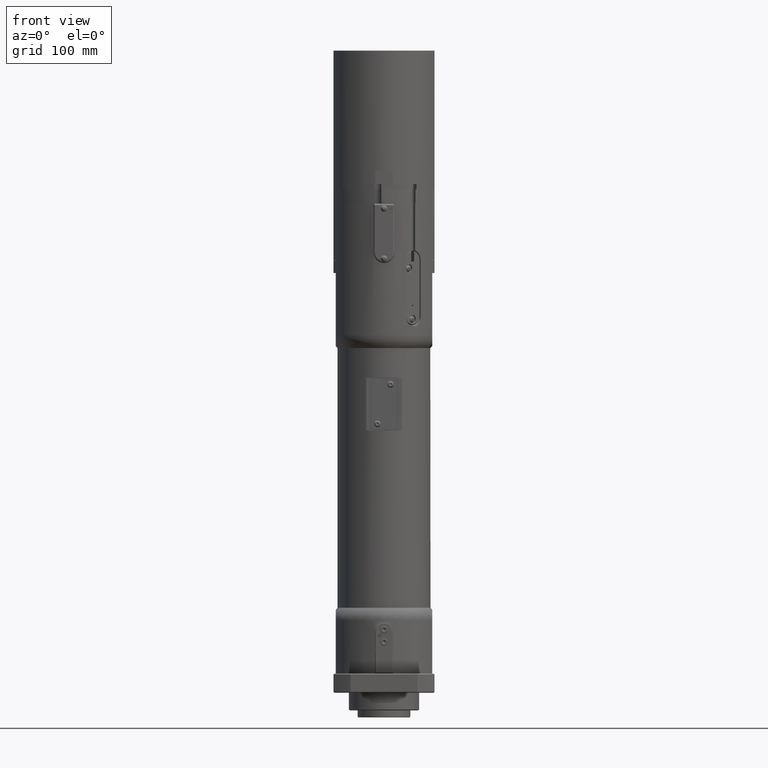
[diagram: clean part render]
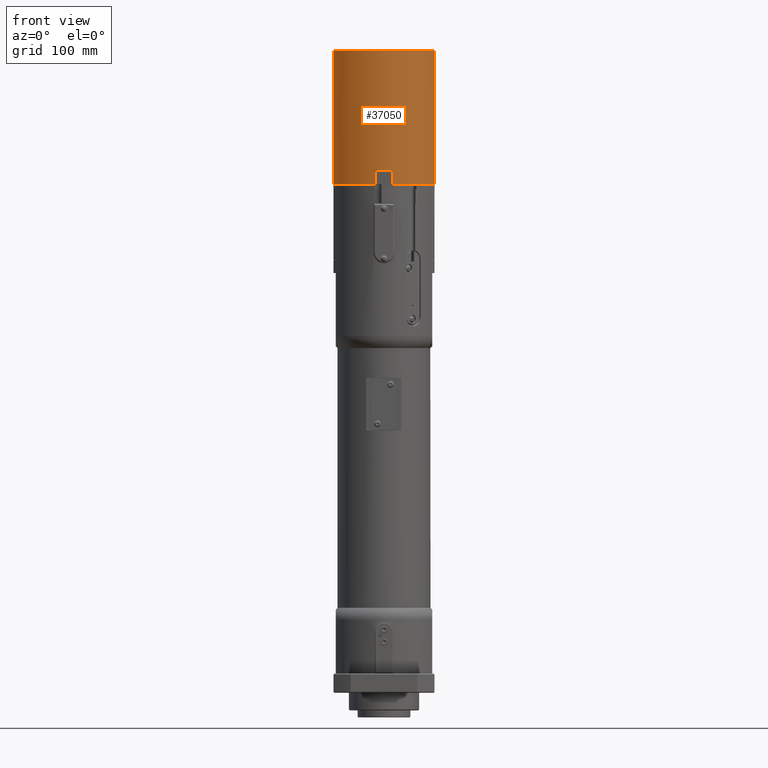
[diagram: same view with one face highlighted and labeled with its STEP entity id]
A machine part, front view. The second image highlights one B-rep face of the part: STEP entity #37050.
In plain terms, the highlighted cylindrical surface (partial cylindrical patch) has radius 61 mm, axis along (-0, 0, 1).
Its self-contained STEP definition (entity closure, byte-faithful):
#3720=FACE_OUTER_BOUND('',#5794,.T.);
#5794=EDGE_LOOP('',(#31263,#31264,#31265,#31266,#31267,#31268,#31269,#31270,
#31271,#31272,#31273));
#6718=CIRCLE('',#38351,60.9999999999989);
#6721=CIRCLE('',#38355,60.9999999999997);
#6726=CIRCLE('',#38366,61.);
#7720=CIRCLE('',#40530,61.0000000000002);
#7725=CIRCLE('',#40541,61.0000000000002);
#7726=CIRCLE('',#40542,61.0000000000002);
#7727=CIRCLE('',#40543,61.0000000000002);
#10649=LINE('',#63174,#13416);
#10652=LINE('',#63178,#13419);
#10655=LINE('',#63191,#13422);
#10656=LINE('',#63194,#13423);
#13416=VECTOR('',#49968,10.);
#13419=VECTOR('',#49973,10.);
#13422=VECTOR('',#49988,10.);
#13423=VECTOR('',#49991,10.);
#14208=VERTEX_POINT('',#53804);
#14216=VERTEX_POINT('',#53823);
#14584=VERTEX_POINT('',#55559);
#14601=VERTEX_POINT('',#55616);
#14604=VERTEX_POINT('',#55624);
#14618=VERTEX_POINT('',#55662);
#16610=VERTEX_POINT('',#63162);
#16611=VERTEX_POINT('',#63164);
#16617=VERTEX_POINT('',#63189);
#16618=VERTEX_POINT('',#63190);
#16619=VERTEX_POINT('',#63192);
#18466=EDGE_CURVE('',#14208,#14601,#6718,.T.);
#18470=EDGE_CURVE('',#14216,#14604,#6721,.T.);
#18493=EDGE_CURVE('',#14618,#14584,#6726,.T.);
#21626=EDGE_CURVE('',#16610,#16611,#7720,.T.);
#21631=EDGE_CURVE('',#14604,#16610,#10649,.T.);
#21634=EDGE_CURVE('',#14618,#16611,#10652,.T.);
#21639=EDGE_CURVE('',#16617,#16618,#10655,.T.);
#21640=EDGE_CURVE('',#16618,#16619,#7725,.T.);
#21641=EDGE_CURVE('',#16619,#14601,#10656,.T.);
#21642=EDGE_CURVE('',#14208,#14584,#7726,.T.);
#21643=EDGE_CURVE('',#14216,#16617,#7727,.T.);
#31263=ORIENTED_EDGE('',*,*,#21639,.T.);
#31264=ORIENTED_EDGE('',*,*,#21640,.T.);
#31265=ORIENTED_EDGE('',*,*,#21641,.T.);
#31266=ORIENTED_EDGE('',*,*,#18466,.F.);
#31267=ORIENTED_EDGE('',*,*,#21642,.T.);
#31268=ORIENTED_EDGE('',*,*,#18493,.F.);
#31269=ORIENTED_EDGE('',*,*,#21634,.T.);
#31270=ORIENTED_EDGE('',*,*,#21626,.F.);
#31271=ORIENTED_EDGE('',*,*,#21631,.F.);
#31272=ORIENTED_EDGE('',*,*,#18470,.F.);
#31273=ORIENTED_EDGE('',*,*,#21643,.T.);
#33543=CYLINDRICAL_SURFACE('',#40540,61.0000000000002);
#37050=ADVANCED_FACE('',(#3720),#33543,.T.);
#38351=AXIS2_PLACEMENT_3D('',#55617,#43693,#43694);
#38355=AXIS2_PLACEMENT_3D('',#55625,#43702,#43703);
#38366=AXIS2_PLACEMENT_3D('',#55669,#43742,#43743);
#40530=AXIS2_PLACEMENT_3D('',#63165,#49958,#49959);
#40540=AXIS2_PLACEMENT_3D('',#63188,#49986,#49987);
#40541=AXIS2_PLACEMENT_3D('',#63193,#49989,#49990);
#40542=AXIS2_PLACEMENT_3D('',#63195,#49992,#49993);
#40543=AXIS2_PLACEMENT_3D('',#63196,#49994,#49995);
#43693=DIRECTION('center_axis',(-3.4279543052119E-16,-5.629473589654E-15,
-1.));
#43694=DIRECTION('ref_axis',(0.539522723258564,-0.841971039340227,4.55490780502395E-15));
#43702=DIRECTION('center_axis',(-3.4279543052119E-16,-5.629473589654E-15,
-1.));
#43703=DIRECTION('ref_axis',(-0.180327868852765,-0.983606557376993,5.59900270680263E-15));
#43742=DIRECTION('center_axis',(-3.4279543052119E-16,-5.629473589654E-15,
-1.));
#43743=DIRECTION('ref_axis',(0.94262295081955,-0.333859210728481,1.55632476921337E-15));
#49958=DIRECTION('center_axis',(-4.27152203933185E-16,2.48976252555931E-15,
1.));
#49959=DIRECTION('ref_axis',(-0.94262295081985,-0.333859210727635,4.28586680761773E-16));
#49968=DIRECTION('',(-4.27152203933185E-16,2.48976252555931E-15,1.));
#49973=DIRECTION('',(-4.27152203933185E-16,2.48976252555931E-15,1.));
#49986=DIRECTION('center_axis',(-4.27152203933185E-16,2.48976252555931E-15,
1.));
#49987=DIRECTION('ref_axis',(-0.94262295081985,-0.333859210727635,4.28586680761773E-16));
#49988=DIRECTION('',(-4.27152203933185E-16,2.48976252555931E-15,1.));
#49989=DIRECTION('center_axis',(-2.4951651999316E-16,2.48976252555921E-15,
1.));
#49990=DIRECTION('ref_axis',(-0.94262295081985,-0.333859210727635,4.28586680761773E-16));
#49991=DIRECTION('',(4.27152203933185E-16,-2.48976252555931E-15,-1.));
#49992=DIRECTION('center_axis',(-4.27152203933185E-16,2.48976252555931E-15,
1.));
#49993=DIRECTION('ref_axis',(-0.94262295081985,-0.333859210727635,4.28586680761773E-16));
#49994=DIRECTION('center_axis',(-4.27152203933185E-16,2.48976252555931E-15,
1.));
#49995=DIRECTION('ref_axis',(-0.94262295081985,-0.333859210727635,4.28586680761773E-16));
#53804=CARTESIAN_POINT('',(32.9108861186886,-51.3602333996123,580.000000000011));
#53823=CARTESIAN_POINT('',(-11.0000000001002,-59.9999999998543,580.000000000011));
#55559=CARTESIAN_POINT('',(37.0066463401355,-48.4923512178602,580.000000000011));
#55616=CARTESIAN_POINT('',(9.84682690004252,-60.1999999998733,580.00000000001));
#55617=CARTESIAN_POINT('Origin',(-8.31574879893277E-11,1.40580880270136E-10,
580.000000000011));
#55624=CARTESIAN_POINT('',(-57.5000000000888,-20.3654118542531,580.000000000011));
#55625=CARTESIAN_POINT('Origin',(-8.16009553088027E-11,1.42001965741656E-10,
580.000000000011));
#55662=CARTESIAN_POINT('',(57.4999999999112,-20.365411854295,580.000000000011));
#55669=CARTESIAN_POINT('Origin',(-8.140111516437E-11,1.42428291383112E-10,
580.000000000011));
#63162=CARTESIAN_POINT('',(-57.5000000000189,-20.3654118542548,732.00000000001));
#63164=CARTESIAN_POINT('',(57.4999999999772,-20.3654118543281,732.00000000001));
#63165=CARTESIAN_POINT('Origin',(-7.91957349329945E-12,1.31024080474162E-10,
732.00000000001));
#63174=CARTESIAN_POINT('',(-57.5000000000189,-20.3654118542552,580.00000000001));
#63178=CARTESIAN_POINT('',(57.4999999999772,-20.3654118543285,580.00000000001));
#63188=CARTESIAN_POINT('Origin',(-7.85464635830161E-12,1.30633281969494E-10,
580.00000000001));
#63189=CARTESIAN_POINT('',(-9.84682690012551,-60.1999999998623,580.00000000001));
#63190=CARTESIAN_POINT('',(-9.84682690012562,-60.1999999998622,595.00000000001));
#63191=CARTESIAN_POINT('',(-9.84682690012547,-60.1999999998623,580.00000000001));
#63192=CARTESIAN_POINT('',(9.84682690004261,-60.1999999998732,595.00000000001));
#63193=CARTESIAN_POINT('Origin',(-7.8610536413606E-12,1.30668809106282E-10,
595.00000000001));
#63194=CARTESIAN_POINT('',(9.84682690004248,-60.1999999998733,580.00000000001));
#63195=CARTESIAN_POINT('Origin',(-7.85464635830161E-12,1.30633281969494E-10,
580.00000000001));
#63196=CARTESIAN_POINT('Origin',(-7.85464635830161E-12,1.30633281969494E-10,
580.00000000001));